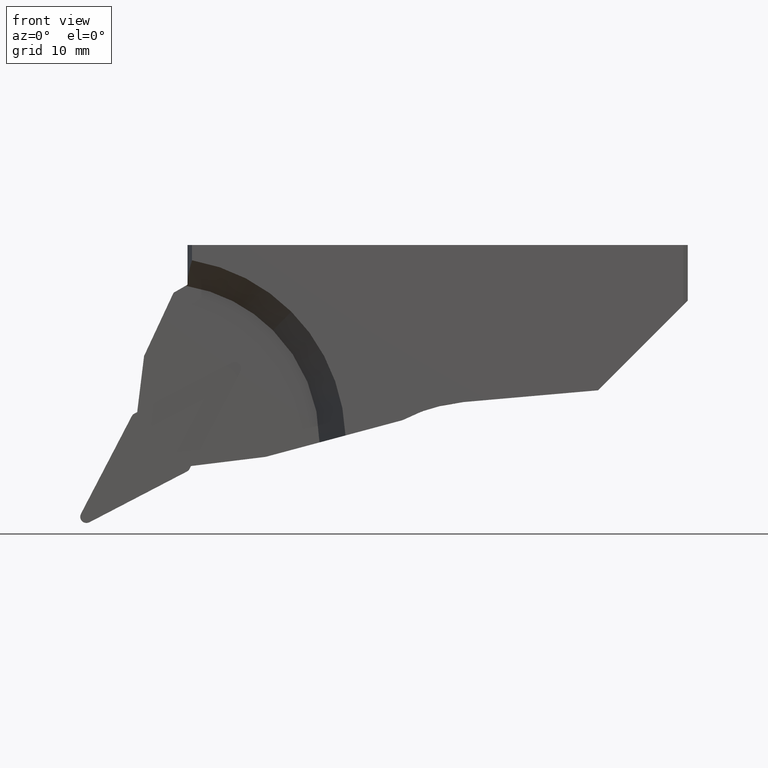
[diagram: clean part render]
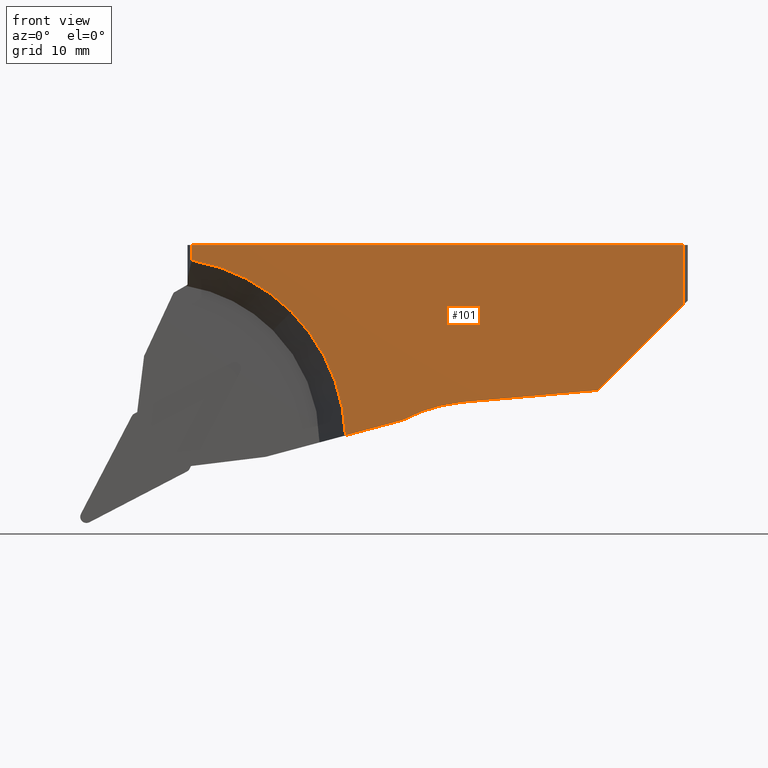
[diagram: same view with one face highlighted and labeled with its STEP entity id]
A machine part, front view. The second image highlights one B-rep face of the part: STEP entity #101.
In plain terms, the highlighted planar face has unit normal (0, 1, 0).
Its self-contained STEP definition (entity closure, byte-faithful):
#101=ADVANCED_FACE('',(#164),#165,.F.);
#164=FACE_OUTER_BOUND('',#308,.T.);
#165=PLANE('',#309);
#308=EDGE_LOOP('',(#541,#542,#543,#544,#545,#546,#547,#548,#549));
#309=AXIS2_PLACEMENT_3D('',#550,#551,#552);
#541=ORIENTED_EDGE('',*,*,#695,.F.);
#542=ORIENTED_EDGE('',*,*,#711,.F.);
#543=ORIENTED_EDGE('',*,*,#714,.F.);
#544=ORIENTED_EDGE('',*,*,#715,.F.);
#545=ORIENTED_EDGE('',*,*,#716,.F.);
#546=ORIENTED_EDGE('',*,*,#680,.F.);
#547=ORIENTED_EDGE('',*,*,#717,.F.);
#548=ORIENTED_EDGE('',*,*,#697,.F.);
#549=ORIENTED_EDGE('',*,*,#689,.F.);
#550=CARTESIAN_POINT('',(-5.42050848650888E-010,-6.00000000000001,-11.9898223481939));
#551=DIRECTION('',(0.0,1.0,0.0));
#552=DIRECTION('',(0.0,0.0,1.0));
#680=EDGE_CURVE('',#819,#821,#822,.T.);
#689=EDGE_CURVE('',#834,#837,#838,.T.);
#695=EDGE_CURVE('',#846,#834,#848,.T.);
#697=EDGE_CURVE('',#837,#850,#851,.T.);
#711=EDGE_CURVE('',#870,#846,#872,.T.);
#714=EDGE_CURVE('',#876,#870,#877,.T.);
#715=EDGE_CURVE('',#878,#876,#879,.T.);
#716=EDGE_CURVE('',#821,#878,#880,.T.);
#717=EDGE_CURVE('',#850,#819,#881,.T.);
#819=VERTEX_POINT('',#1062);
#821=VERTEX_POINT('',#1064);
#822=LINE('',#1065,#1066);
#834=VERTEX_POINT('',#1087);
#837=VERTEX_POINT('',#1091);
#838=CIRCLE('',#1092,23.2908965343809);
#846=VERTEX_POINT('',#1100);
#848=CIRCLE('',#1102,23.2908965343809);
#850=VERTEX_POINT('',#1104);
#851=LINE('',#1105,#1106);
#870=VERTEX_POINT('',#1147);
#872=LINE('',#1150,#1151);
#876=VERTEX_POINT('',#1157);
#877=CIRCLE('',#1158,20.0);
#878=VERTEX_POINT('',#1159);
#879=LINE('',#1160,#1161);
#880=LINE('',#1162,#1163);
#881=LINE('',#1164,#1165);
#1062=CARTESIAN_POINT('',(30.9232921921325,-5.99999999999998,0.0));
#1064=CARTESIAN_POINT('',(30.9232921921325,-5.99999999999998,-7.5767078078675));
#1065=CARTESIAN_POINT('',(30.9232921921325,-5.99999999999998,0.0));
#1066=VECTOR('',#1259,7.5767078078675);
#1087=CARTESIAN_POINT('',(-18.4035004710821,-6.0,-8.40350047108121));
#1091=CARTESIAN_POINT('',(-30.9232921921325,-5.99999999999999,-1.9190367415589));
#1092=AXIS2_PLACEMENT_3D('',#1275,#1276,#1277);
#1100=CARTESIAN_POINT('',(-11.5988806957243,-5.99999999999999,-23.9796446953036));
#1102=AXIS2_PLACEMENT_3D('',#1293,#1294,#1295);
#1104=CARTESIAN_POINT('',(-30.9232921921325,-5.99999999999999,0.0));
#1105=CARTESIAN_POINT('',(-30.9232921921325,-5.99999999999999,-1.9190367415589));
#1106=VECTOR('',#1299,1.9190367415589);
#1147=CARTESIAN_POINT('',(-4.4152357307086,-5.99999999999997,-22.0547928282157));
#1150=CARTESIAN_POINT('',(-4.4152357307086,-5.99999999999997,-22.0547928282157));
#1151=VECTOR('',#1319,7.43705652080359);
#1157=CARTESIAN_POINT('',(3.2568851450468,-5.99999999999999,-19.7761060381651));
#1158=AXIS2_PLACEMENT_3D('',#1322,#1323,#1324);
#1159=CARTESIAN_POINT('',(20.2068212154876,-5.99999999999998,-18.2931787845124));
#1160=CARTESIAN_POINT('',(20.2068212154876,-5.99999999999998,-18.2931787845124));
#1161=VECTOR('',#1325,17.0146820726);
#1162=CARTESIAN_POINT('',(30.9232921921325,-5.99999999999998,-7.5767078078675));
#1163=VECTOR('',#1326,15.1553785959489);
#1164=CARTESIAN_POINT('',(-30.9232921921325,-5.99999999999999,0.0));
#1165=VECTOR('',#1327,61.846584384265);
#1259=DIRECTION('',(0.0,0.0,-1.0));
#1275=CARTESIAN_POINT('',(-34.8726513504568,-6.0,-24.8726513504565));
#1276=DIRECTION('',(0.0,-1.0,0.0));
#1277=DIRECTION('',(0.707106781186535,0.0,0.70710678118656));
#1293=CARTESIAN_POINT('',(-34.8726513504568,-6.0,-24.8726513504565));
#1294=DIRECTION('',(0.0,-1.0,0.0));
#1295=DIRECTION('',(0.707106781186535,0.0,0.70710678118656));
#1299=DIRECTION('',(0.0,0.0,1.0));
#1319=DIRECTION('',(-0.965925826289067,-2.83636912115315E-015,-0.258819045102526));
#1322=CARTESIAN_POINT('',(5.0,-5.99999999999997,-39.7));
#1323=DIRECTION('',(0.0,-1.0,0.0));
#1324=DIRECTION('',(-1.0,0.0,0.0));
#1325=DIRECTION('',(-0.996194698091746,-6.52508827310403E-016,-0.087155742747657));
#1326=DIRECTION('',(-0.707106781186547,0.0,-0.707106781186548));
#1327=DIRECTION('',(1.0,0.0,0.0));